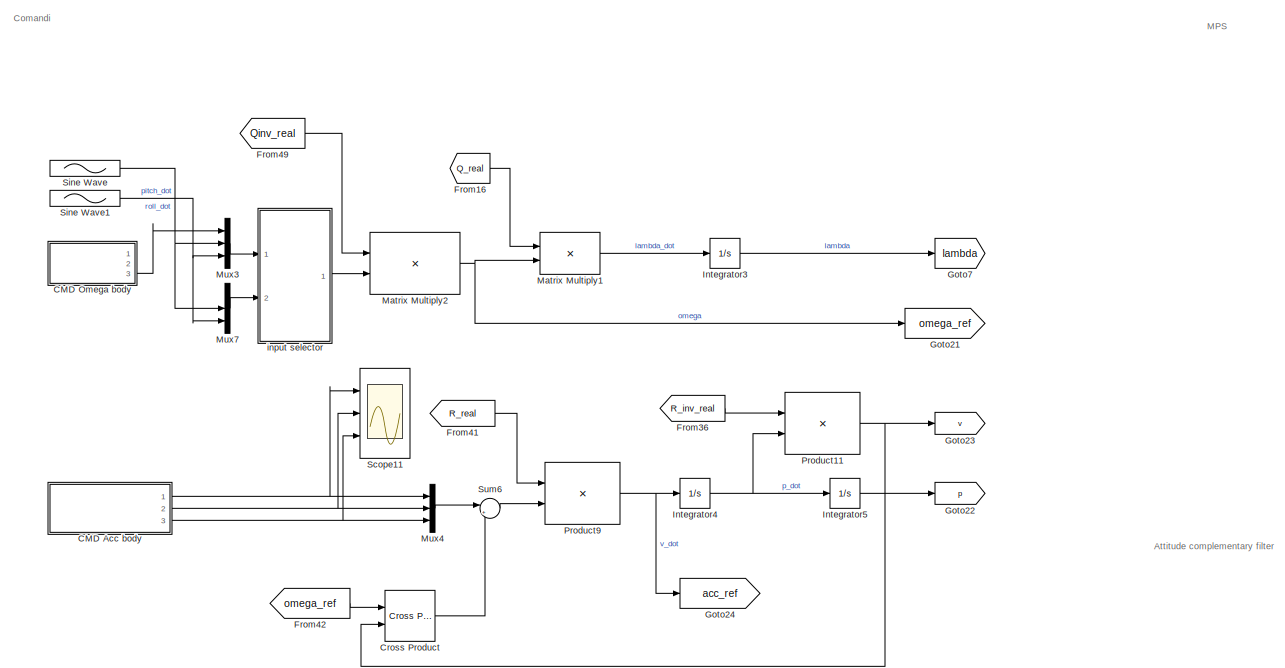
[diagram: root canvas - part 1/7, top left region]
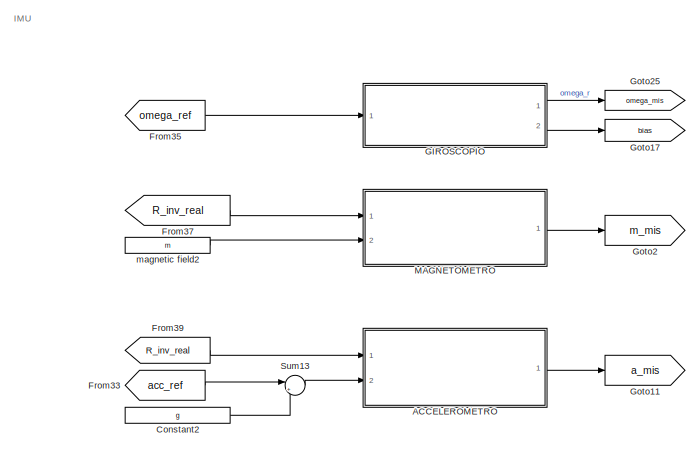
[diagram: root canvas - part 2/7, top right region]
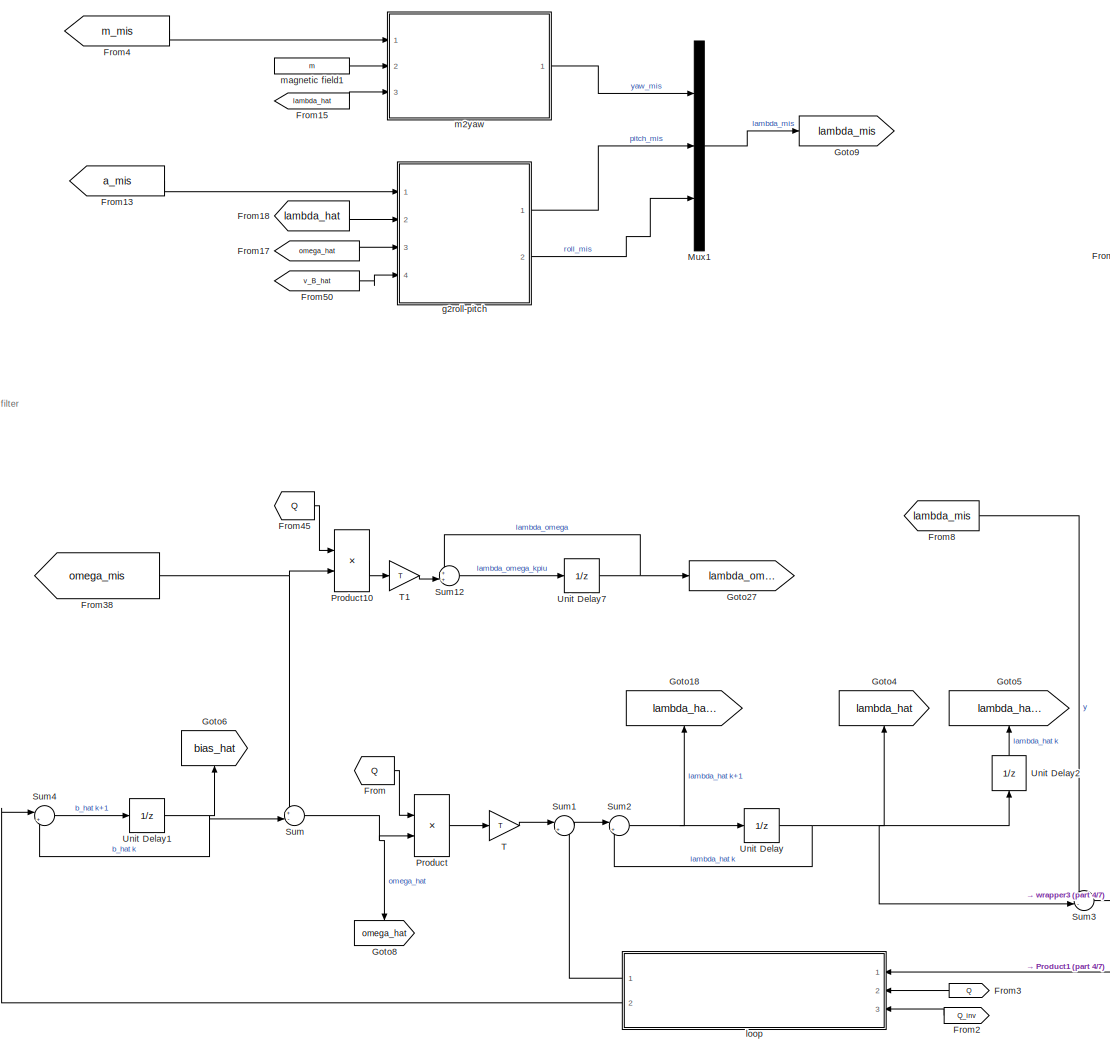
[diagram: root canvas - part 3/7, top center region]
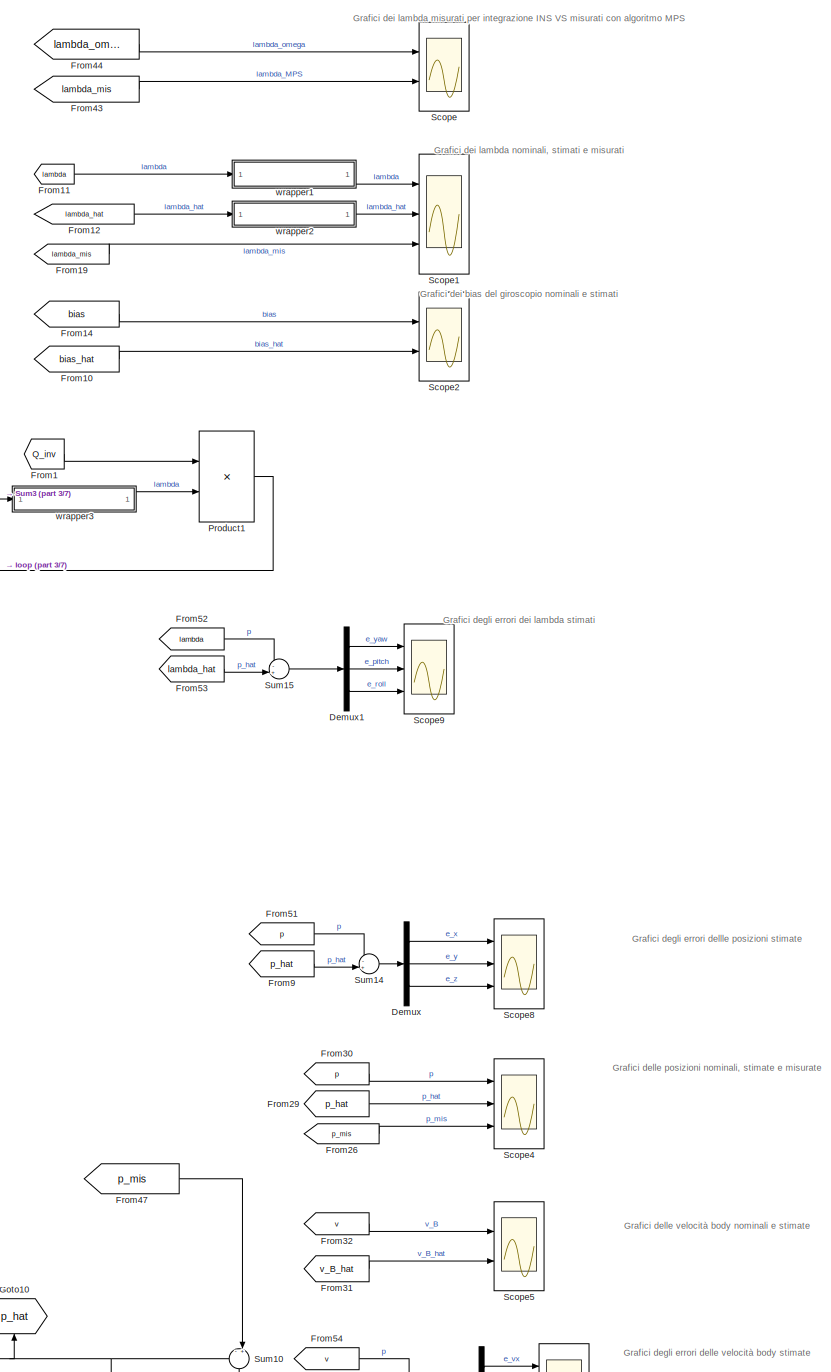
[diagram: root canvas - part 4/7, middle right region]
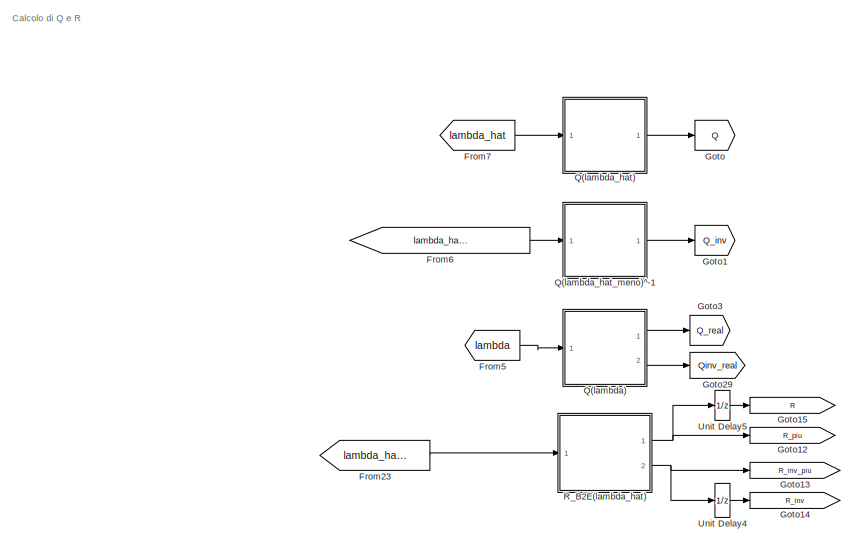
[diagram: root canvas - part 5/7, middle left region]
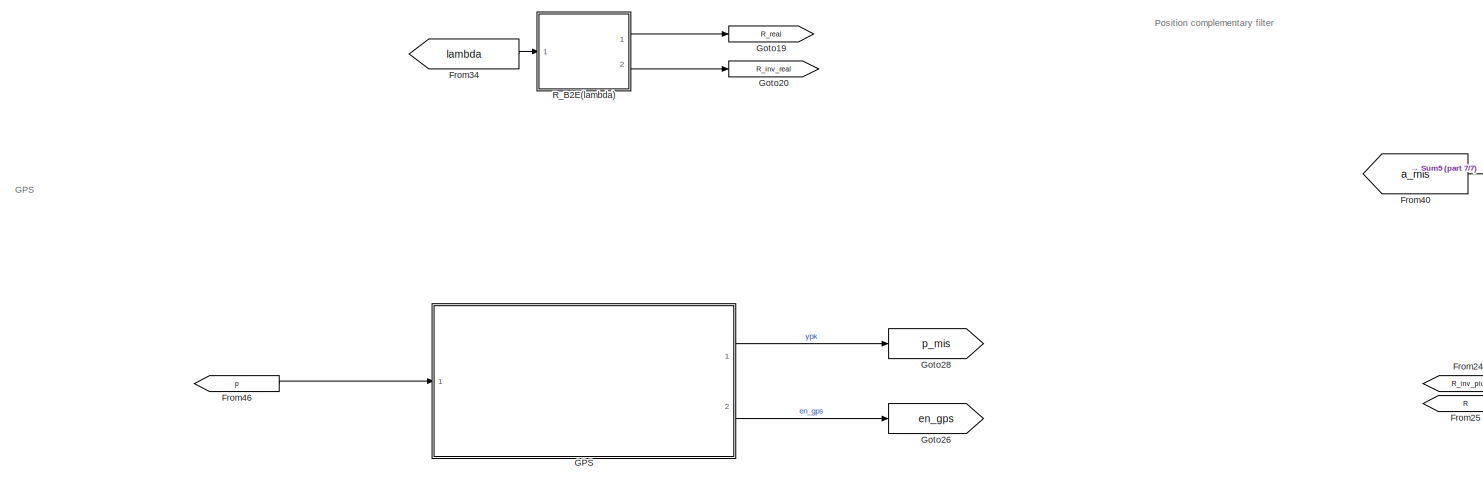
[diagram: root canvas - part 6/7, bottom left region]
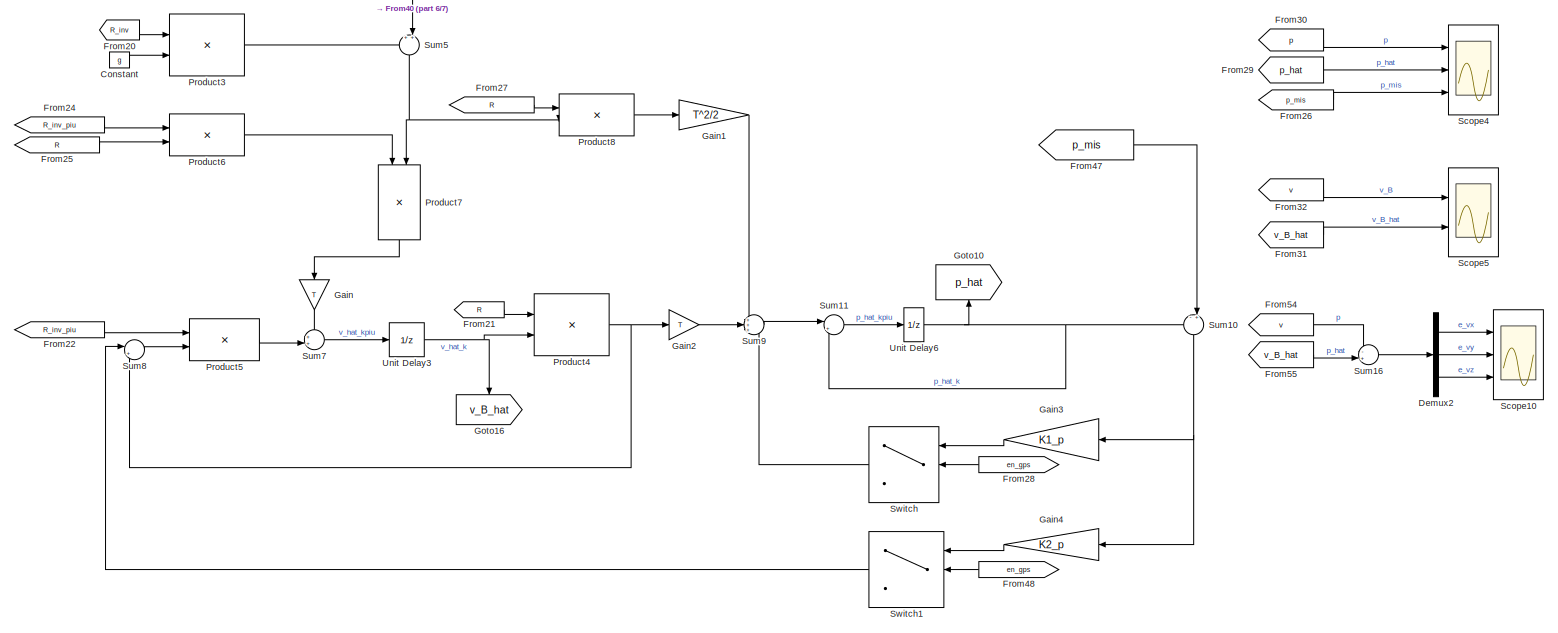
[diagram: root canvas - part 7/7, bottom right region]
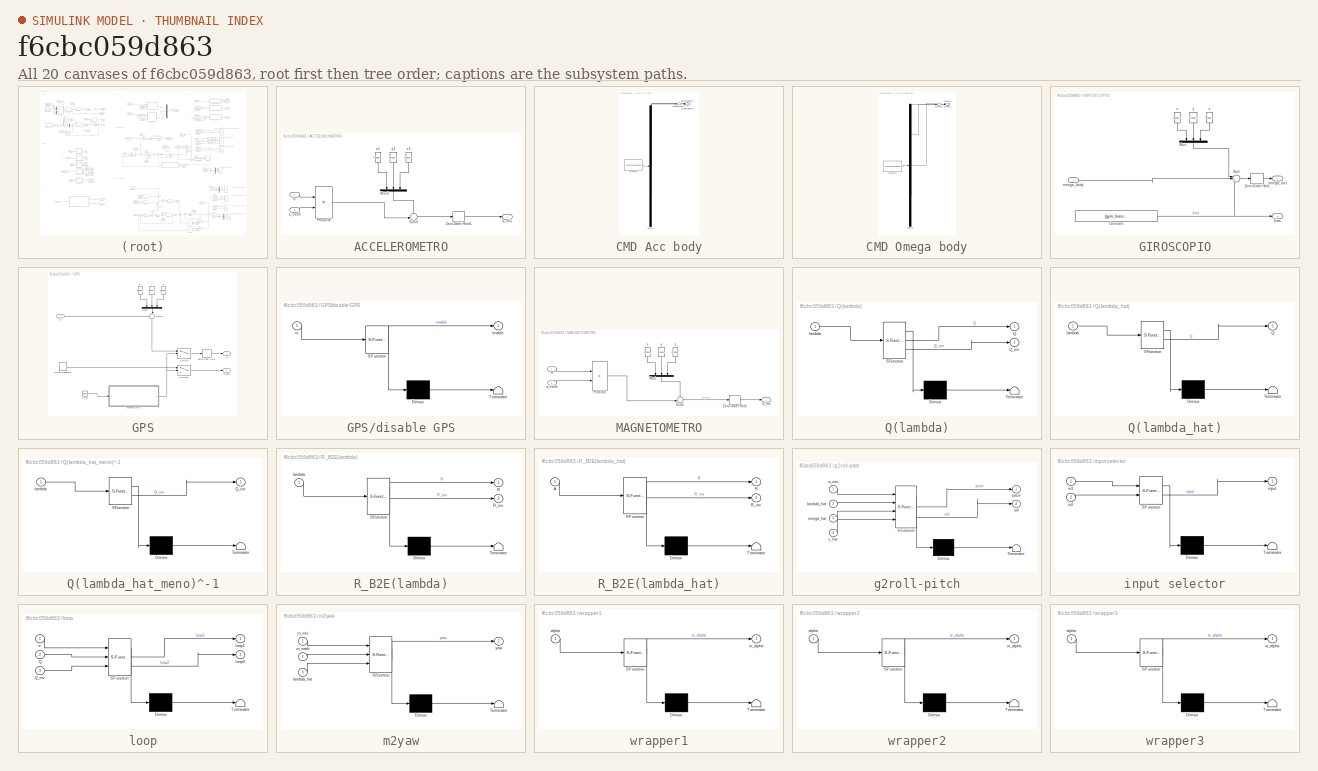
[diagram: thumbnail index - all 20 canvases of the model, root first then tree order]
MODEL slx_f6cbc059d863
KIND model
CONFIG AbsTol = auto
CONFIG EnableMultiTasking = off
CONFIG FixedStep = auto
CONFIG MaxStep = auto
CONFIG MinStep = auto
CONFIG RelTol = 1e-3
CONFIG SampleTimeConstraint = Unconstrained
CONFIG SolverName = VariableStepAuto
CONFIG StartTime = 0.0
CONFIG StopTime = 380
BLOCK [SubSystem] ACCELEROMETRO
  Ports = [2, 1]
  RequestExecContextInheritance = off
BLOCK [Mux] ACCELEROMETRO/Mux2
  DisplayOption = bar
  Inputs = 3
  NameLocation = left
  Ports = [3, 1]
BLOCK [Product] ACCELEROMETRO/Product4
  Multiplication = Matrix(*)
  Ports = [2, 1]
BLOCK [Inport] ACCELEROMETRO/R
BLOCK [Sum] ACCELEROMETRO/Sum6
  Inputs = ++|
  Ports = [2, 1]
BLOCK [ZeroOrderHold] ACCELEROMETRO/Zero-Order Hold1
  SampleTime = T
BLOCK [Inport] ACCELEROMETRO/a_earth
  Port = 2
BLOCK [Outport] ACCELEROMETRO/a_mis
BLOCK [RandomNumber] ACCELEROMETRO/x1
  NameLocation = left
  SampleTime = T
  Variance = acc_sigmax
BLOCK [RandomNumber] ACCELEROMETRO/y1
  NameLocation = left
  SampleTime = T
  Variance = acc_sigmay
  VectorParams1D = off
BLOCK [RandomNumber] ACCELEROMETRO/z1
  NameLocation = left
  SampleTime = T
  Variance = acc_sigmaz
BLOCK [SubSystem] CMD Acc body
  ClipboardFcn = sigbuilder_block('clipboard');
  CloseFcn = sigbuilder_block('close');
  ContinueFcn = sigbuilder_block('continue');
  CopyFcn = sigbuilder_block('copy');
  DeleteFcn = sigbuilder_block('delete');
  LoadFcn = sigbuilder_block('load',[182.4 90 550.8 320.4 ]);
  MaskHideContents = on
  ModelCloseFcn = sigbuilder_block('modelClose');
  NameChangeFcn = sigbuilder_block('namechange');
  OpenFcn = sigbuilder_block('open',[182.4 90 550.8 320.4 ]);
  PauseFcn = sigbuilder_block('pause');
  Ports = [0, 3]
  PreSaveFcn = sigbuilder_block('preSave');
  RequestExecContextInheritance = off
  StartFcn = sigbuilder_block('start');
  StopFcn = sigbuilder_block('stop');
  Tag = STV Subsys
BLOCK [Demux] CMD Acc body/Demux
  DisplayOption = none
  Outputs = 3
  Ports = [1, 3]
  Tag = STV Demux
BLOCK [FromWorkspace] CMD Acc body/FromWs
  Tag = STV FromWs
  VariableName = tuvar
BLOCK [Outport] CMD Acc body/accelerazione x
  Tag = STV Outport
BLOCK [Outport] CMD Acc body/accelerazione y
  Port = 2
  Tag = STV Outport
BLOCK [Outport] CMD Acc body/accelerazione z
  Port = 3
  Tag = STV Outport
BLOCK [SubSystem] CMD Omega body
  ClipboardFcn = sigbuilder_block('clipboard');
  CloseFcn = sigbuilder_block('close');
  ContinueFcn = sigbuilder_block('continue');
  CopyFcn = sigbuilder_block('copy');
  DeleteFcn = sigbuilder_block('delete');
  LoadFcn = sigbuilder_block('load');
  MaskHideContents = on
  ModelCloseFcn = sigbuilder_block('modelClose');
  NameChangeFcn = sigbuilder_block('namechange');
  OpenFcn = sigbuilder_block('open',[112.8 93.6 550.8 400.2 ]);
  PauseFcn = sigbuilder_block('pause');
  Ports = [0, 3]
  PreSaveFcn = sigbuilder_block('preSave');
  RequestExecContextInheritance = off
  StartFcn = sigbuilder_block('start');
  StopFcn = sigbuilder_block('stop');
  Tag = STV Subsys
BLOCK [Demux] CMD Omega body/Demux
  DisplayOption = none
  Outputs = 3
  Ports = [1, 3]
  Tag = STV Demux
BLOCK [FromWorkspace] CMD Omega body/FromWs
  Tag = STV FromWs
  VariableName = tuvar
BLOCK [Outport] CMD Omega body/omega x
  Tag = STV Outport
BLOCK [Outport] CMD Omega body/omega y
  Port = 2
  Tag = STV Outport
BLOCK [Outport] CMD Omega body/omega z
  Port = 3
  Tag = STV Outport
BLOCK [Constant] Constant
  Value = g
  VectorParams1D = off
BLOCK [Constant] Constant2
  Value = g
  VectorParams1D = off
BLOCK [Reference] Cross Product  REF=matrix_library/Cross Product
  Ports = [2, 1]
  SourceBlock = matrix_library/Cross Product
  SourceProductBaseCode = SL
  SourceType = CrossProduct
BLOCK [Demux] Demux
  Outputs = 3
  Ports = [1, 3]
BLOCK [Demux] Demux1
  Outputs = 3
  Ports = [1, 3]
BLOCK [Demux] Demux2
  Outputs = 3
  Ports = [1, 3]
BLOCK [From] From
  GotoTag = Q
BLOCK [From] From1
  GotoTag = Q_inv
BLOCK [From] From10
  GotoTag = bias_hat
BLOCK [From] From11
  GotoTag = lambda
BLOCK [From] From12
  GotoTag = lambda_hat
BLOCK [From] From13
  GotoTag = a_mis
BLOCK [From] From14
  GotoTag = bias
BLOCK [From] From15
  GotoTag = lambda_hat
BLOCK [From] From16
  GotoTag = Q_real
BLOCK [From] From17
  GotoTag = omega_hat
BLOCK [From] From18
  GotoTag = lambda_hat
BLOCK [From] From19
  GotoTag = lambda_mis
BLOCK [From] From2
  GotoTag = Q_inv
BLOCK [From] From20
  GotoTag = R_inv
BLOCK [From] From21
  GotoTag = R
BLOCK [From] From22
  GotoTag = R_inv_piu
BLOCK [From] From23
  GotoTag = lambda_hat_kpiu
BLOCK [From] From24
  GotoTag = R_inv_piu
BLOCK [From] From25
  GotoTag = R
BLOCK [From] From26
  GotoTag = p_mis
BLOCK [From] From27
  GotoTag = R
BLOCK [From] From28
  GotoTag = en_gps
BLOCK [From] From29
  GotoTag = p_hat
BLOCK [From] From3
  GotoTag = Q
BLOCK [From] From30
  GotoTag = p
BLOCK [From] From31
  GotoTag = v_B_hat
BLOCK [From] From32
  GotoTag = v
BLOCK [From] From33
  GotoTag = acc_ref
BLOCK [From] From34
  GotoTag = lambda
BLOCK [From] From35
  GotoTag = omega_ref
BLOCK [From] From36
  GotoTag = R_inv_real
BLOCK [From] From37
  GotoTag = R_inv_real
BLOCK [From] From38
  GotoTag = omega_mis
BLOCK [From] From39
  GotoTag = R_inv_real
BLOCK [From] From4
  GotoTag = m_mis
BLOCK [From] From40
  GotoTag = a_mis
BLOCK [From] From41
  GotoTag = R_real
BLOCK [From] From42
  GotoTag = omega_ref
BLOCK [From] From43
  GotoTag = lambda_mis
BLOCK [From] From44
  GotoTag = lambda_omega
BLOCK [From] From45
  GotoTag = Q
BLOCK [From] From46
  GotoTag = p
BLOCK [From] From47
  GotoTag = p_mis
BLOCK [From] From48
  GotoTag = en_gps
BLOCK [From] From49
  GotoTag = Qinv_real
BLOCK [From] From5
  GotoTag = lambda
BLOCK [From] From50
  GotoTag = v_B_hat
BLOCK [From] From51
  GotoTag = p
BLOCK [From] From52
  GotoTag = lambda
BLOCK [From] From53
  GotoTag = lambda_hat
BLOCK [From] From54
  GotoTag = v
BLOCK [From] From55
  GotoTag = v_B_hat
BLOCK [From] From6
  GotoTag = lambda_hat_kmeno
BLOCK [From] From7
  GotoTag = lambda_hat
BLOCK [From] From8
  GotoTag = lambda_mis
BLOCK [From] From9
  GotoTag = p_hat
BLOCK [SubSystem] GIROSCOPIO
  Ports = [1, 2]
  RequestExecContextInheritance = off
BLOCK [Constant] GIROSCOPIO/Constant
  Value = [gyro_biasx; gyro_biasy;gyro_biasz]
BLOCK [Mux] GIROSCOPIO/Mux
  DisplayOption = bar
  Inputs = 3
  NameLocation = left
  Ports = [3, 1]
BLOCK [Sum] GIROSCOPIO/Sum
  Inputs = |+++
  Ports = [3, 1]
BLOCK [ZeroOrderHold] GIROSCOPIO/Zero-Order Hold
  SampleTime = T
BLOCK [Outport] GIROSCOPIO/bias
  Port = 2
BLOCK [Inport] GIROSCOPIO/omega_body
BLOCK [Outport] GIROSCOPIO/omega_mis
BLOCK [RandomNumber] GIROSCOPIO/x
  NameLocation = left
  SampleTime = T
  Variance = gyro_sigmax
BLOCK [RandomNumber] GIROSCOPIO/y
  NameLocation = left
  SampleTime = T
  Variance = gyro_sigmay
  VectorParams1D = off
BLOCK [RandomNumber] GIROSCOPIO/z
  NameLocation = left
  SampleTime = T
  Variance = gyro_sigmaz
BLOCK [SubSystem] GPS
  Ports = [1, 2]
  RequestExecContextInheritance = off
BLOCK [Clock] GPS/Clock
BLOCK [Mux] GPS/Mux2
  DisplayOption = bar
  Inputs = 3
  NameLocation = left
  Ports = [3, 1]
BLOCK [DiscretePulseGenerator] GPS/Pulse Generator
  Period = T_gps
  Ports = [0, 1]
  PulseType = Time based
  PulseWidth = 5
BLOCK [Sum] GPS/Sum11
  Inputs = ++|
  NameLocation = left
  Ports = [2, 1]
BLOCK [Switch] GPS/Switch
  Criteria = u2 > Threshold
  InputSameDT = off
  SaturateOnIntegerOverflow = off
BLOCK [Switch] GPS/Switch1
  Criteria = u2 > Threshold
  InputSameDT = off
  SaturateOnIntegerOverflow = off
BLOCK [ZeroOrderHold] GPS/Zero-Order Hold
  SampleTime = T_gps
BLOCK [SubSystem] GPS/disable GPS
  ErrorFcn = Stateflow.Translate.translate
  PermitHierarchicalResolution = ExplicitOnly
  Ports = [1, 1]
  RequestExecContextInheritance = off
  SFBlockType = MATLAB Function
  TreatAsAtomicUnit = on
BLOCK [Demux] GPS/disable GPS/ Demux 
  Outputs = 1
  Ports = [1, 1]
BLOCK [S-Function] GPS/disable GPS/ SFunction 
  EnableBusSupport = on
  FunctionName = sf_sfun
  Parameters = EN_OUTAGE,interval1,interval2
  PortCounts = [1 2]
  Ports = [1, 2]
  SFcnIsStateOwnerBlock = off
  SFunctionDeploymentMode = off
  Tag = Stateflow S-Function 8
BLOCK [Terminator] GPS/disable GPS/ Terminator 
BLOCK [Outport] GPS/disable GPS/enable
BLOCK [Inport] GPS/disable GPS/in
BLOCK [Outport] GPS/en_gps
  Port = 2
BLOCK [Inport] GPS/p
BLOCK [RandomNumber] GPS/x
  NameLocation = left
  SampleTime = T_gps
  Variance = gps_sigmax
BLOCK [RandomNumber] GPS/y
  NameLocation = left
  SampleTime = T_gps
  Variance = gps_sigmay
  VectorParams1D = off
BLOCK [Outport] GPS/y_p
BLOCK [RandomNumber] GPS/z
  NameLocation = left
  SampleTime = T_gps
  Variance = gps_sigmaz
BLOCK [Gain] Gain
  Gain = T
  NameLocation = left
BLOCK [Gain] Gain1
  Gain = T^2/2
BLOCK [Gain] Gain2
  Gain = T
  NameLocation = top
BLOCK [Gain] Gain3
  Gain = K1_p
  Multiplication = Matrix(K*u)
  NameLocation = top
BLOCK [Gain] Gain4
  Gain = K2_p
  Multiplication = Matrix(K*u)
  NameLocation = top
BLOCK [Goto] Goto
  GotoTag = Q
BLOCK [Goto] Goto1
  GotoTag = Q_inv
BLOCK [Goto] Goto10
  GotoTag = p_hat
  NameLocation = right
BLOCK [Goto] Goto11
  GotoTag = a_mis
BLOCK [Goto] Goto12
  GotoTag = R_piu
BLOCK [Goto] Goto13
  GotoTag = R_inv_piu
BLOCK [Goto] Goto14
  GotoTag = R_inv
BLOCK [Goto] Goto15
  GotoTag = R
BLOCK [Goto] Goto16
  GotoTag = v_B_hat
  NameLocation = left
BLOCK [Goto] Goto17
  GotoTag = bias
BLOCK [Goto] Goto18
  GotoTag = lambda_hat_kpiu
  NameLocation = right
BLOCK [Goto] Goto19
  GotoTag = R_real
BLOCK [Goto] Goto2
  GotoTag = m_mis
BLOCK [Goto] Goto20
  GotoTag = R_inv_real
BLOCK [Goto] Goto21
  GotoTag = omega_ref
BLOCK [Goto] Goto22
  GotoTag = p
BLOCK [Goto] Goto23
  GotoTag = v
BLOCK [Goto] Goto24
  GotoTag = acc_ref
BLOCK [Goto] Goto25
  GotoTag = omega_mis
BLOCK [Goto] Goto26
  GotoTag = en_gps
BLOCK [Goto] Goto27
  GotoTag = lambda_omega
BLOCK [Goto] Goto28
  GotoTag = p_mis
BLOCK [Goto] Goto29
  GotoTag = Qinv_real
BLOCK [Goto] Goto3
  GotoTag = Q_real
BLOCK [Goto] Goto4
  GotoTag = lambda_hat
  NameLocation = right
BLOCK [Goto] Goto5
  GotoTag = lambda_hat_kmeno
  NameLocation = right
BLOCK [Goto] Goto6
  GotoTag = bias_hat
  NameLocation = right
BLOCK [Goto] Goto7
  GotoTag = lambda
BLOCK [Goto] Goto8
  GotoTag = omega_hat
  NameLocation = left
BLOCK [Goto] Goto9
  GotoTag = lambda_mis
BLOCK [Integrator] Integrator3
  InitialCondition = lambda0
  Ports = [1, 1]
BLOCK [Integrator] Integrator4
  InitialCondition = [0;0;0]
  Ports = [1, 1]
BLOCK [Integrator] Integrator5
  Ports = [1, 1]
BLOCK [SubSystem] MAGNETOMETRO
  Ports = [2, 1]
  RequestExecContextInheritance = off
BLOCK [Mux] MAGNETOMETRO/Mux1
  DisplayOption = bar
  Inputs = 3
  NameLocation = left
  Ports = [3, 1]
BLOCK [Product] MAGNETOMETRO/Product3
  Multiplication = Matrix(*)
  Ports = [2, 1]
BLOCK [Inport] MAGNETOMETRO/R
BLOCK [Sum] MAGNETOMETRO/Sum5
  Inputs = ++|
  Ports = [2, 1]
BLOCK [ZeroOrderHold] MAGNETOMETRO/Zero-Order Hold
  SampleTime = T
BLOCK [Inport] MAGNETOMETRO/m_earth
  Port = 2
BLOCK [Outport] MAGNETOMETRO/m_mis
BLOCK [RandomNumber] MAGNETOMETRO/x
  NameLocation = left
  SampleTime = T
  Variance = mag_sigmax
BLOCK [RandomNumber] MAGNETOMETRO/y
  NameLocation = left
  SampleTime = T
  Variance = mag_sigmay
  VectorParams1D = off
BLOCK [RandomNumber] MAGNETOMETRO/z
  NameLocation = left
  SampleTime = T
  Variance = mag_sigmaz
BLOCK [Product] Matrix Multiply1
  Multiplication = Matrix(*)
  Ports = [2, 1]
BLOCK [Product] Matrix Multiply2
  Multiplication = Matrix(*)
  Ports = [2, 1]
BLOCK [Mux] Mux1
  DisplayOption = bar
  Inputs = 3
  Ports = [3, 1]
BLOCK [Mux] Mux3
  DisplayOption = bar
  Inputs = 3
  Ports = [3, 1]
BLOCK [Mux] Mux4
  DisplayOption = bar
  Inputs = 3
  Ports = [3, 1]
BLOCK [Mux] Mux7
  DisplayOption = bar
  Inputs = 3
  Ports = [3, 1]
BLOCK [Product] Product
  Multiplication = Matrix(*)
  Ports = [2, 1]
BLOCK [Product] Product1
  Multiplication = Matrix(*)
  Ports = [2, 1]
BLOCK [Product] Product10
  Multiplication = Matrix(*)
  Ports = [2, 1]
BLOCK [Product] Product11
  Multiplication = Matrix(*)
  Ports = [2, 1]
BLOCK [Product] Product3
  Multiplication = Matrix(*)
  Ports = [2, 1]
BLOCK [Product] Product4
  Multiplication = Matrix(*)
  Ports = [2, 1]
BLOCK [Product] Product5
  Multiplication = Matrix(*)
  Ports = [2, 1]
BLOCK [Product] Product6
  Multiplication = Matrix(*)
  Ports = [2, 1]
BLOCK [Product] Product7
  Multiplication = Matrix(*)
  NameLocation = left
  Ports = [2, 1]
BLOCK [Product] Product8
  Multiplication = Matrix(*)
  Ports = [2, 1]
BLOCK [Product] Product9
  Multiplication = Matrix(*)
  Ports = [2, 1]
BLOCK [SubSystem] Q(lambda)
  ErrorFcn = Stateflow.Translate.translate
  NameLocation = top
  PermitHierarchicalResolution = ExplicitOnly
  Ports = [1, 2]
  RequestExecContextInheritance = off
  SFBlockType = MATLAB Function
  TreatAsAtomicUnit = on
BLOCK [Demux] Q(lambda)/ Demux 
  Outputs = 1
  Ports = [1, 1]
BLOCK [S-Function] Q(lambda)/ SFunction 
  EnableBusSupport = on
  FunctionName = sf_sfun
  PortCounts = [1 3]
  Ports = [1, 3]
  SFcnIsStateOwnerBlock = off
  SFunctionDeploymentMode = off
  Tag = Stateflow S-Function 4
BLOCK [Terminator] Q(lambda)/ Terminator 
BLOCK [Outport] Q(lambda)/Q
BLOCK [Outport] Q(lambda)/Q_inv
  Port = 2
BLOCK [Inport] Q(lambda)/lambda
BLOCK [SubSystem] Q(lambda_hat)
  ErrorFcn = Stateflow.Translate.translate
  NameLocation = top
  PermitHierarchicalResolution = ExplicitOnly
  Ports = [1, 1]
  RequestExecContextInheritance = off
  SFBlockType = MATLAB Function
  TreatAsAtomicUnit = on
BLOCK [Demux] Q(lambda_hat)/ Demux 
  Outputs = 1
  Ports = [1, 1]
BLOCK [S-Function] Q(lambda_hat)/ SFunction 
  EnableBusSupport = on
  FunctionName = sf_sfun
  PortCounts = [1 2]
  Ports = [1, 2]
  SFcnIsStateOwnerBlock = off
  SFunctionDeploymentMode = off
  Tag = Stateflow S-Function 2
BLOCK [Terminator] Q(lambda_hat)/ Terminator 
BLOCK [Outport] Q(lambda_hat)/Q
BLOCK [Inport] Q(lambda_hat)/lambda
BLOCK [SubSystem] Q(lambda_hat_meno)^-1
  ErrorFcn = Stateflow.Translate.translate
  NameLocation = top
  PermitHierarchicalResolution = ExplicitOnly
  Ports = [1, 1]
  RequestExecContextInheritance = off
  SFBlockType = MATLAB Function
  TreatAsAtomicUnit = on
BLOCK [Demux] Q(lambda_hat_meno)^-1/ Demux 
  Outputs = 1
  Ports = [1, 1]
BLOCK [S-Function] Q(lambda_hat_meno)^-1/ SFunction 
  EnableBusSupport = on
  FunctionName = sf_sfun
  PortCounts = [1 2]
  Ports = [1, 2]
  SFcnIsStateOwnerBlock = off
  SFunctionDeploymentMode = off
  Tag = Stateflow S-Function 1
BLOCK [Terminator] Q(lambda_hat_meno)^-1/ Terminator 
BLOCK [Outport] Q(lambda_hat_meno)^-1/Q_inv
BLOCK [Inport] Q(lambda_hat_meno)^-1/lambda
BLOCK [SubSystem] R_B2E(lambda)
  ErrorFcn = Stateflow.Translate.translate
  PermitHierarchicalResolution = ExplicitOnly
  Ports = [1, 2]
  RequestExecContextInheritance = off
  SFBlockType = MATLAB Function
  TreatAsAtomicUnit = on
BLOCK [Demux] R_B2E(lambda)/ Demux 
  Outputs = 1
  Ports = [1, 1]
BLOCK [S-Function] R_B2E(lambda)/ SFunction 
  EnableBusSupport = on
  FunctionName = sf_sfun
  PortCounts = [1 3]
  Ports = [1, 3]
  SFcnIsStateOwnerBlock = off
  SFunctionDeploymentMode = off
  Tag = Stateflow S-Function 9
BLOCK [Terminator] R_B2E(lambda)/ Terminator 
BLOCK [Outport] R_B2E(lambda)/R
BLOCK [Outport] R_B2E(lambda)/R_inv
  Port = 2
BLOCK [Inport] R_B2E(lambda)/lambda
BLOCK [SubSystem] R_B2E(lambda_hat)
  ErrorFcn = Stateflow.Translate.translate
  PermitHierarchicalResolution = ExplicitOnly
  Ports = [1, 2]
  RequestExecContextInheritance = off
  SFBlockType = MATLAB Function
  TreatAsAtomicUnit = on
BLOCK [Demux] R_B2E(lambda_hat)/ Demux 
  Outputs = 1
  Ports = [1, 1]
BLOCK [S-Function] R_B2E(lambda_hat)/ SFunction 
  EnableBusSupport = on
  FunctionName = sf_sfun
  PortCounts = [1 3]
  Ports = [1, 3]
  SFcnIsStateOwnerBlock = off
  SFunctionDeploymentMode = off
  Tag = Stateflow S-Function 7
BLOCK [Terminator] R_B2E(lambda_hat)/ Terminator 
BLOCK [Inport] R_B2E(lambda_hat)/A
BLOCK [Outport] R_B2E(lambda_hat)/R
BLOCK [Outport] R_B2E(lambda_hat)/R_inv
  Port = 2
BLOCK [Scope] Scope
  Floating = off
  NumInputPorts = 2
  Ports = [2]
  ScopeSpecificationString = Simulink.scopes.TimeScopeBlockCfg('CurrentConfiguration', extmgr.ConfigurationSet(extmgr.Configuration('Core','General UI',true),extmgr.Configuration('Core','Source UI',true),extmgr.Configuration('Sources','WiredSimulink',true),extmgr.Configuration('Visuals','Time Domain',true,'SerializedDisplays',{struct('MinYLimReal','-0.33773','MaxYLimReal','0.68213','YLabelReal','','MinYLimMag','0.00000','MaxY...<+1654ch>
BLOCK [Scope] Scope1
  Floating = off
  NumInputPorts = 3
  Ports = [3]
  ScopeSpecificationString = Simulink.scopes.TimeScopeBlockCfg('CurrentConfiguration', extmgr.ConfigurationSet(extmgr.Configuration('Core','General UI',true),extmgr.Configuration('Core','Source UI',true),extmgr.Configuration('Sources','WiredSimulink',true,'DataLoggingVariableName','ScopeData1'),extmgr.Configuration('Visuals','Time Domain',true,'SerializedDisplays',{struct('MinYLimReal','-3.92699','MaxYLimReal','3.92698','YLab...<+1935ch>
BLOCK [Scope] Scope10
  Floating = off
  NumInputPorts = 3
  Ports = [3]
  ScopeSpecificationString = Simulink.scopes.TimeScopeBlockCfg('CurrentConfiguration', extmgr.ConfigurationSet(extmgr.Configuration('Core','General UI',true),extmgr.Configuration('Core','Source UI',true),extmgr.Configuration('Sources','WiredSimulink',true,'DataLoggingVariableName','ScopeData3'),extmgr.Configuration('Visuals','Time Domain',true,'SerializedDisplays',{struct('MinYLimReal','-2.77355','MaxYLimReal','2.16835','YLab...<+3019ch>
BLOCK [Scope] Scope11
  Floating = off
  NumInputPorts = 3
  Ports = [3]
  ScopeSpecificationString = Simulink.scopes.TimeScopeBlockCfg('CurrentConfiguration', extmgr.ConfigurationSet(extmgr.Configuration('Core','General UI',true),extmgr.Configuration('Core','Source UI',true),extmgr.Configuration('Sources','WiredSimulink',true,'DataLoggingVariableName','ScopeData1'),extmgr.Configuration('Visuals','Time Domain',true,'SerializedDisplays',{struct('MinYLimReal','-0.13125','MaxYLimReal','1.18125','YLab...<+2979ch>
BLOCK [Scope] Scope2
  Floating = off
  NumInputPorts = 2
  Ports = [2]
  ScopeSpecificationString = Simulink.scopes.TimeScopeBlockCfg('CurrentConfiguration', extmgr.ConfigurationSet(extmgr.Configuration('Core','General UI',true),extmgr.Configuration('Core','Source UI',true),extmgr.Configuration('Sources','WiredSimulink',true,'DataLoggingVariableName','ScopeData1'),extmgr.Configuration('Visuals','Time Domain',true,'SerializedDisplays',{struct('MinYLimReal','0.0006','MaxYLimReal','0.00285','YLabel...<+1714ch>
BLOCK [Scope] Scope4
  Floating = off
  NumInputPorts = 3
  Ports = [3]
  ScopeSpecificationString = Simulink.scopes.TimeScopeBlockCfg('CurrentConfiguration', extmgr.ConfigurationSet(extmgr.Configuration('Core','General UI',true),extmgr.Configuration('Core','Source UI',true),extmgr.Configuration('Sources','WiredSimulink',true,'DataLoggingVariableName','ScopeData1'),extmgr.Configuration('Visuals','Time Domain',true,'SerializedDisplays',{struct('MinYLimReal','-282.34303','MaxYLimReal','965.45001','...<+1835ch>
BLOCK [Scope] Scope5
  Floating = off
  NumInputPorts = 2
  Ports = [2]
  ScopeSpecificationString = Simulink.scopes.TimeScopeBlockCfg('CurrentConfiguration', extmgr.ConfigurationSet(extmgr.Configuration('Core','General UI',true),extmgr.Configuration('Core','Source UI',true),extmgr.Configuration('Sources','WiredSimulink',true,'DataLoggingVariableName','ScopeData2'),extmgr.Configuration('Visuals','Time Domain',true,'SerializedDisplays',{struct('MinYLimReal','-1.82142','MaxYLimReal','4.44335','YLab...<+1709ch>
BLOCK [Scope] Scope8
  Floating = off
  NumInputPorts = 3
  Ports = [3]
  ScopeSpecificationString = Simulink.scopes.TimeScopeBlockCfg('CurrentConfiguration', extmgr.ConfigurationSet(extmgr.Configuration('Core','General UI',true),extmgr.Configuration('Core','Source UI',true),extmgr.Configuration('Sources','WiredSimulink',true,'DataLoggingVariableName','ScopeData1'),extmgr.Configuration('Visuals','Time Domain',true,'SerializedDisplays',{struct('MinYLimReal','-15.50912','MaxYLimReal','10.04108','YL...<+3295ch>
BLOCK [Scope] Scope9
  Floating = off
  NumInputPorts = 3
  Ports = [3]
  ScopeSpecificationString = Simulink.scopes.TimeScopeBlockCfg('CurrentConfiguration', extmgr.ConfigurationSet(extmgr.Configuration('Core','General UI',true),extmgr.Configuration('Core','Source UI',true),extmgr.Configuration('Sources','WiredSimulink',true,'DataLoggingVariableName','ScopeData2'),extmgr.Configuration('Visuals','Time Domain',true,'SerializedDisplays',{struct('MinYLimReal','-0.01673','MaxYLimReal','0.01979','YLab...<+3027ch>
BLOCK [Sin] Sine Wave
  Amplitude = deg2rad(10)*(2*pi*0.01)
  Frequency = 2*pi*0.01
  Ports = [0, 1]
  SampleTime = 0
BLOCK [Sin] Sine Wave1
  Amplitude = deg2rad(9)*(2*pi*0.01)
  Frequency = 2*pi*0.01
  Phase = 2
  Ports = [0, 1]
  SampleTime = 0
BLOCK [Sum] Sum
  Inputs = +-|
  Ports = [2, 1]
BLOCK [Sum] Sum1
  Inputs = |++
  Ports = [2, 1]
BLOCK [Sum] Sum10
  Inputs = -+|
  NameLocation = right
  Ports = [2, 1]
BLOCK [Sum] Sum11
  Inputs = |++
  Ports = [2, 1]
BLOCK [Sum] Sum12
  Inputs = ++|
  Ports = [2, 1]
BLOCK [Sum] Sum13
  Inputs = |+-
  Ports = [2, 1]
BLOCK [Sum] Sum14
  Inputs = -+|
  NameLocation = top
  Ports = [2, 1]
BLOCK [Sum] Sum15
  Inputs = -+|
  NameLocation = top
  Ports = [2, 1]
BLOCK [Sum] Sum16
  Inputs = -+|
  NameLocation = top
  Ports = [2, 1]
BLOCK [Sum] Sum2
  Inputs = |++
  Ports = [2, 1]
BLOCK [Sum] Sum3
  Inputs = +-|
  Ports = [2, 1]
BLOCK [Sum] Sum4
  Inputs = |++
  Ports = [2, 1]
BLOCK [Sum] Sum5
  Inputs = ++|
  NameLocation = left
  Ports = [2, 1]
BLOCK [Sum] Sum6
  Inputs = |++
  Ports = [2, 1]
BLOCK [Sum] Sum7
  Inputs = ++|
  Ports = [2, 1]
BLOCK [Sum] Sum8
  Inputs = |++
  Ports = [2, 1]
BLOCK [Sum] Sum9
  Inputs = +++
  Ports = [3, 1]
BLOCK [Switch] Switch
  Criteria = u2 > Threshold
  InputSameDT = off
  SaturateOnIntegerOverflow = off
BLOCK [Switch] Switch1
  Criteria = u2 > Threshold
  InputSameDT = off
  SaturateOnIntegerOverflow = off
BLOCK [Gain] T
  Gain = T
BLOCK [Gain] T1
  Gain = T
  Multiplication = Matrix(K*u)
BLOCK [UnitDelay] Unit Delay
  HasFrameUpgradeWarning = on
  InitialCondition = lambda_hat_0
  SampleTime = T
BLOCK [UnitDelay] Unit Delay1
  HasFrameUpgradeWarning = on
  InitialCondition = bias_hat_0
  SampleTime = T
BLOCK [UnitDelay] Unit Delay2
  HasFrameUpgradeWarning = on
  InitialCondition = lambda_hat_0
  NameLocation = right
  SampleTime = T
BLOCK [UnitDelay] Unit Delay3
  HasFrameUpgradeWarning = on
  InitialCondition = v_B_hat_0
  SampleTime = -1
BLOCK [UnitDelay] Unit Delay4
  HasFrameUpgradeWarning = on
  SampleTime = T
BLOCK [UnitDelay] Unit Delay5
  HasFrameUpgradeWarning = on
  SampleTime = T
BLOCK [UnitDelay] Unit Delay6
  HasFrameUpgradeWarning = on
  InitialCondition = p_hat_0
  SampleTime = -1
BLOCK [UnitDelay] Unit Delay7
  HasFrameUpgradeWarning = on
  InitialCondition = lambda_hat_0
  SampleTime = T
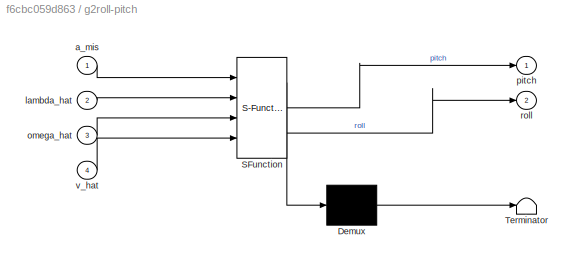
BLOCK [SubSystem] g2roll-pitch
  ErrorFcn = Stateflow.Translate.translate
  NameLocation = top
  PermitHierarchicalResolution = ExplicitOnly
  Ports = [4, 2]
  RequestExecContextInheritance = off
  SFBlockType = MATLAB Function
  TreatAsAtomicUnit = on
BLOCK [Demux] g2roll-pitch/ Demux 
  Outputs = 1
  Ports = [1, 1]
BLOCK [S-Function] g2roll-pitch/ SFunction 
  EnableBusSupport = on
  FunctionName = sf_sfun
  PortCounts = [4 3]
  Ports = [4, 3]
  SFcnIsStateOwnerBlock = off
  SFunctionDeploymentMode = off
  Tag = Stateflow S-Function 5
BLOCK [Terminator] g2roll-pitch/ Terminator 
BLOCK [Inport] g2roll-pitch/a_mis
BLOCK [Inport] g2roll-pitch/lambda_hat
  Port = 2
BLOCK [Inport] g2roll-pitch/omega_hat
  Port = 3
BLOCK [Outport] g2roll-pitch/pitch
BLOCK [Outport] g2roll-pitch/roll
  Port = 2
BLOCK [Inport] g2roll-pitch/v_hat
  Port = 4
BLOCK [SubSystem] input selector
  ErrorFcn = Stateflow.Translate.translate
  PermitHierarchicalResolution = ExplicitOnly
  Ports = [2, 1]
  RequestExecContextInheritance = off
  SFBlockType = MATLAB Function
  TreatAsAtomicUnit = on
BLOCK [Demux] input selector/ Demux 
  Outputs = 1
  Ports = [1, 1]
BLOCK [S-Function] input selector/ SFunction 
  EnableBusSupport = on
  FunctionName = sf_sfun
  Parameters = TRAIETTORIA
  PortCounts = [2 2]
  Ports = [2, 2]
  SFcnIsStateOwnerBlock = off
  SFunctionDeploymentMode = off
  Tag = Stateflow S-Function 14
BLOCK [Terminator] input selector/ Terminator 
BLOCK [Inport] input selector/in1
BLOCK [Inport] input selector/in2
  Port = 2
BLOCK [Outport] input selector/input
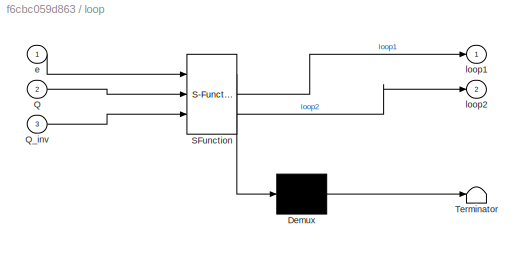
BLOCK [SubSystem] loop
  ErrorFcn = Stateflow.Translate.translate
  NameLocation = top
  PermitHierarchicalResolution = ExplicitOnly
  Ports = [3, 2]
  RequestExecContextInheritance = off
  SFBlockType = MATLAB Function
  TreatAsAtomicUnit = on
BLOCK [Demux] loop/ Demux 
  Outputs = 1
  Ports = [1, 1]
BLOCK [S-Function] loop/ SFunction 
  EnableBusSupport = on
  FunctionName = sf_sfun
  Parameters = K1_lambda,K2_lambda
  PortCounts = [3 3]
  Ports = [3, 3]
  SFcnIsStateOwnerBlock = off
  SFunctionDeploymentMode = off
  Tag = Stateflow S-Function 3
BLOCK [Terminator] loop/ Terminator 
BLOCK [Inport] loop/Q
  Port = 2
BLOCK [Inport] loop/Q_inv
  Port = 3
BLOCK [Inport] loop/e
BLOCK [Outport] loop/loop1
BLOCK [Outport] loop/loop2
  Port = 2
BLOCK [SubSystem] m2yaw
  ErrorFcn = Stateflow.Translate.translate
  NameLocation = top
  PermitHierarchicalResolution = ExplicitOnly
  Ports = [3, 1]
  RequestExecContextInheritance = off
  SFBlockType = MATLAB Function
  TreatAsAtomicUnit = on
BLOCK [Demux] m2yaw/ Demux 
  Outputs = 1
  Ports = [1, 1]
BLOCK [S-Function] m2yaw/ SFunction 
  EnableBusSupport = on
  FunctionName = sf_sfun
  PortCounts = [3 2]
  Ports = [3, 2]
  SFcnIsStateOwnerBlock = off
  SFunctionDeploymentMode = off
  Tag = Stateflow S-Function 6
BLOCK [Terminator] m2yaw/ Terminator 
BLOCK [Inport] m2yaw/lambda_hat
  Port = 3
BLOCK [Inport] m2yaw/m_earth
  Port = 2
BLOCK [Inport] m2yaw/m_mis
BLOCK [Outport] m2yaw/yaw
BLOCK [Constant] magnetic field1
  Value = m
BLOCK [Constant] magnetic field2
  Value = m
BLOCK [SubSystem] wrapper1
  ErrorFcn = Stateflow.Translate.translate
  NameLocation = top
  PermitHierarchicalResolution = ExplicitOnly
  Ports = [1, 1]
  RequestExecContextInheritance = off
  SFBlockType = MATLAB Function
  TreatAsAtomicUnit = on
BLOCK [Demux] wrapper1/ Demux 
  Outputs = 1
  Ports = [1, 1]
BLOCK [S-Function] wrapper1/ SFunction 
  EnableBusSupport = on
  FunctionName = sf_sfun
  PortCounts = [1 2]
  Ports = [1, 2]
  SFcnIsStateOwnerBlock = off
  SFunctionDeploymentMode = off
  Tag = Stateflow S-Function 11
BLOCK [Terminator] wrapper1/ Terminator 
BLOCK [Inport] wrapper1/alpha
BLOCK [Outport] wrapper1/w_alpha
BLOCK [SubSystem] wrapper2
  ErrorFcn = Stateflow.Translate.translate
  NameLocation = top
  PermitHierarchicalResolution = ExplicitOnly
  Ports = [1, 1]
  RequestExecContextInheritance = off
  SFBlockType = MATLAB Function
  TreatAsAtomicUnit = on
BLOCK [Demux] wrapper2/ Demux 
  Outputs = 1
  Ports = [1, 1]
BLOCK [S-Function] wrapper2/ SFunction 
  EnableBusSupport = on
  FunctionName = sf_sfun
  PortCounts = [1 2]
  Ports = [1, 2]
  SFcnIsStateOwnerBlock = off
  SFunctionDeploymentMode = off
  Tag = Stateflow S-Function 13
BLOCK [Terminator] wrapper2/ Terminator 
BLOCK [Inport] wrapper2/alpha
BLOCK [Outport] wrapper2/w_alpha
BLOCK [SubSystem] wrapper3
  ErrorFcn = Stateflow.Translate.translate
  NameLocation = top
  PermitHierarchicalResolution = ExplicitOnly
  Ports = [1, 1]
  RequestExecContextInheritance = off
  SFBlockType = MATLAB Function
  TreatAsAtomicUnit = on
BLOCK [Demux] wrapper3/ Demux 
  Outputs = 1
  Ports = [1, 1]
BLOCK [S-Function] wrapper3/ SFunction 
  EnableBusSupport = on
  FunctionName = sf_sfun
  PortCounts = [1 2]
  Ports = [1, 2]
  SFcnIsStateOwnerBlock = off
  SFunctionDeploymentMode = off
  Tag = Stateflow S-Function 12
BLOCK [Terminator] wrapper3/ Terminator 
BLOCK [Inport] wrapper3/alpha
BLOCK [Outport] wrapper3/w_alpha
ANNOTATION (root): Grafici degli errori dei lambda stimati
ANNOTATION (root): Grafici degli errori delle velocità body stimate
ANNOTATION (root): Grafici degli errori dellle posizioni stimate
ANNOTATION (root): Grafici dei bias del giroscopio nominali e stimati
ANNOTATION (root): Grafici dei lambda misurati per integrazione INS VS misurati con algoritmo MPS
ANNOTATION (root): Grafici dei lambda nominali, stimati e misurati
ANNOTATION (root): Grafici delle posizioni nominali, stimate e misurate
ANNOTATION (root): Grafici delle velocità body nominali e stimate
ANNOTATION (root): Attitude complementary filter
ANNOTATION (root): Calcolo di Q e R
ANNOTATION (root): Comandi
ANNOTATION (root): GPS
ANNOTATION (root): IMU
ANNOTATION (root): MPS
ANNOTATION (root): Position complementary filter
LINE ACCELEROMETRO/Mux2:1 -> ACCELEROMETRO/Sum6:1
LINE ACCELEROMETRO/Product4:1 -> ACCELEROMETRO/Sum6:2
LINE ACCELEROMETRO/R:1 -> ACCELEROMETRO/Product4:1
LINE ACCELEROMETRO/Sum6:1 -> ACCELEROMETRO/Zero-Order Hold1:1
LINE ACCELEROMETRO/Zero-Order Hold1:1 -> ACCELEROMETRO/a_mis:1
LINE ACCELEROMETRO/a_earth:1 -> ACCELEROMETRO/Product4:2
LINE ACCELEROMETRO/x1:1 -> ACCELEROMETRO/Mux2:1
LINE ACCELEROMETRO/y1:1 -> ACCELEROMETRO/Mux2:2
LINE ACCELEROMETRO/z1:1 -> ACCELEROMETRO/Mux2:3
LINE ACCELEROMETRO:1 -> Goto11:1
NET CMD Acc body:1 -> Mux4:1, Scope11:1
NET CMD Acc body:2 -> Mux4:2, Scope11:2
NET CMD Acc body:3 -> Mux4:3, Scope11:3
LINE CMD Omega body:3 -> Mux3:1
LINE Constant2:1 -> Sum13:2
LINE Constant:1 -> Product3:2
LINE Cross Product:1 -> Sum6:2
LINE Demux1:1 -> Scope9:1
LINE Demux1:2 -> Scope9:2
LINE Demux1:3 -> Scope9:3
LINE Demux2:1 -> Scope10:1
LINE Demux2:2 -> Scope10:2
LINE Demux2:3 -> Scope10:3
LINE Demux:1 -> Scope8:1
LINE Demux:2 -> Scope8:2
LINE Demux:3 -> Scope8:3
LINE From10:1 -> Scope2:2
LINE From11:1 -> wrapper1:1
LINE From12:1 -> wrapper2:1
LINE From13:1 -> g2roll-pitch:1
LINE From14:1 -> Scope2:1
LINE From15:1 -> m2yaw:3
LINE From16:1 -> Matrix Multiply1:1
LINE From17:1 -> g2roll-pitch:3
LINE From18:1 -> g2roll-pitch:2
LINE From19:1 -> Scope1:3
LINE From1:1 -> Product1:1
LINE From20:1 -> Product3:1
LINE From21:1 -> Product4:1
LINE From22:1 -> Product5:1
LINE From23:1 -> R_B2E(lambda_hat):1
LINE From24:1 -> Product6:1
LINE From25:1 -> Product6:2
LINE From26:1 -> Scope4:3
LINE From27:1 -> Product8:1
LINE From28:1 -> Switch:2
LINE From29:1 -> Scope4:2
LINE From2:1 -> loop:3
LINE From30:1 -> Scope4:1
LINE From31:1 -> Scope5:2
LINE From32:1 -> Scope5:1
LINE From33:1 -> Sum13:1
LINE From34:1 -> R_B2E(lambda):1
LINE From35:1 -> GIROSCOPIO:1
LINE From36:1 -> Product11:1
LINE From37:1 -> MAGNETOMETRO:1
NET From38:1 -> Product10:2, Sum:1
LINE From39:1 -> ACCELEROMETRO:1
LINE From3:1 -> loop:2
LINE From40:1 -> Sum5:2
LINE From41:1 -> Product9:1
LINE From42:1 -> Cross Product:1
LINE From43:1 -> Scope:2
LINE From44:1 -> Scope:1
LINE From45:1 -> Product10:1
LINE From46:1 -> GPS:1
LINE From47:1 -> Sum10:2
LINE From48:1 -> Switch1:2
LINE From49:1 -> Matrix Multiply2:1
LINE From4:1 -> m2yaw:1
LINE From50:1 -> g2roll-pitch:4
LINE From51:1 -> Sum14:1
LINE From52:1 -> Sum15:1
LINE From53:1 -> Sum15:2
LINE From54:1 -> Sum16:1
LINE From55:1 -> Sum16:2
LINE From5:1 -> Q(lambda):1
LINE From6:1 -> Q(lambda_hat_meno)^-1:1
LINE From7:1 -> Q(lambda_hat):1
LINE From8:1 -> Sum3:1
LINE From9:1 -> Sum14:2
LINE From:1 -> Product:1
NET GIROSCOPIO/Constant:1 -> GIROSCOPIO/Sum:3, GIROSCOPIO/bias:1
LINE GIROSCOPIO/Mux:1 -> GIROSCOPIO/Sum:1
LINE GIROSCOPIO/Sum:1 -> GIROSCOPIO/Zero-Order Hold:1
LINE GIROSCOPIO/Zero-Order Hold:1 -> GIROSCOPIO/omega_mis:1
LINE GIROSCOPIO/omega_body:1 -> GIROSCOPIO/Sum:2
LINE GIROSCOPIO/x:1 -> GIROSCOPIO/Mux:1
LINE GIROSCOPIO/y:1 -> GIROSCOPIO/Mux:2
LINE GIROSCOPIO/z:1 -> GIROSCOPIO/Mux:3
LINE GIROSCOPIO:1 -> Goto25:1
LINE GIROSCOPIO:2 -> Goto17:1
LINE GPS/Clock:1 -> GPS/disable GPS:1
LINE GPS/Mux2:1 -> GPS/Sum11:2
LINE GPS/Pulse Generator:1 -> GPS/Switch1:1
LINE GPS/Sum11:1 -> GPS/Switch:1
LINE GPS/Switch1:1 -> GPS/en_gps:1
LINE GPS/Switch:1 -> GPS/Zero-Order Hold:1
LINE GPS/Zero-Order Hold:1 -> GPS/y_p:1
NET GPS/disable GPS:1 -> GPS/Switch1:2, GPS/Switch:2
LINE GPS/p:1 -> GPS/Sum11:1
LINE GPS/x:1 -> GPS/Mux2:1
LINE GPS/y:1 -> GPS/Mux2:2
LINE GPS/z:1 -> GPS/Mux2:3
LINE GPS:1 -> Goto28:1
LINE GPS:2 -> Goto26:1
LINE Gain1:1 -> Sum9:1
LINE Gain2:1 -> Sum9:2
LINE Gain3:1 -> Switch:1
LINE Gain4:1 -> Switch1:1
LINE Gain:1 -> Sum7:1
LINE Integrator3:1 -> Goto7:1
NET Integrator4:1 -> Integrator5:1, Product11:2
LINE Integrator5:1 -> Goto22:1
LINE MAGNETOMETRO/Mux1:1 -> MAGNETOMETRO/Sum5:1
LINE MAGNETOMETRO/Product3:1 -> MAGNETOMETRO/Sum5:2
LINE MAGNETOMETRO/R:1 -> MAGNETOMETRO/Product3:1
LINE MAGNETOMETRO/Sum5:1 -> MAGNETOMETRO/Zero-Order Hold:1
LINE MAGNETOMETRO/Zero-Order Hold:1 -> MAGNETOMETRO/m_mis:1
LINE MAGNETOMETRO/m_earth:1 -> MAGNETOMETRO/Product3:2
LINE MAGNETOMETRO/x:1 -> MAGNETOMETRO/Mux1:1
LINE MAGNETOMETRO/y:1 -> MAGNETOMETRO/Mux1:2
LINE MAGNETOMETRO/z:1 -> MAGNETOMETRO/Mux1:3
LINE MAGNETOMETRO:1 -> Goto2:1
LINE Matrix Multiply1:1 -> Integrator3:1
NET Matrix Multiply2:1 -> Goto21:1, Matrix Multiply1:2
LINE Mux1:1 -> Goto9:1
LINE Mux3:1 -> input selector:1
LINE Mux4:1 -> Sum6:1
LINE Mux7:1 -> input selector:2
LINE Product10:1 -> T1:1
NET Product11:1 -> Cross Product:2, Goto23:1
LINE Product1:1 -> loop:1
LINE Product3:1 -> Sum5:1
NET Product4:1 -> Gain2:1, Sum8:2
LINE Product5:1 -> Sum7:2
LINE Product6:1 -> Product7:1
LINE Product7:1 -> Gain:1
LINE Product8:1 -> Gain1:1
NET Product9:1 -> Goto24:1, Integrator4:1
LINE Product:1 -> T:1
LINE Q(lambda):1 -> Goto3:1
LINE Q(lambda):2 -> Goto29:1
LINE Q(lambda_hat):1 -> Goto:1
LINE Q(lambda_hat_meno)^-1:1 -> Goto1:1
LINE R_B2E(lambda):1 -> Goto19:1
LINE R_B2E(lambda):2 -> Goto20:1
NET R_B2E(lambda_hat):1 -> Goto12:1, Unit Delay5:1
NET R_B2E(lambda_hat):2 -> Goto13:1, Unit Delay4:1
NET Sine Wave1:1 -> Mux3:3, Mux7:3
NET Sine Wave:1 -> Mux3:2, Mux7:2
NET Sum10:1 -> Gain3:1, Gain4:1
LINE Sum11:1 -> Unit Delay6:1
LINE Sum12:1 -> Unit Delay7:1
LINE Sum13:1 -> ACCELEROMETRO:2
LINE Sum14:1 -> Demux:1
LINE Sum15:1 -> Demux1:1
LINE Sum16:1 -> Demux2:1
LINE Sum1:1 -> Sum2:1
NET Sum2:1 -> Goto18:1, Unit Delay:1
LINE Sum3:1 -> wrapper3:1
LINE Sum4:1 -> Unit Delay1:1
NET Sum5:1 -> Product7:2, Product8:2
LINE Sum6:1 -> Product9:2
LINE Sum7:1 -> Unit Delay3:1
LINE Sum8:1 -> Product5:2
LINE Sum9:1 -> Sum11:1
NET Sum:1 -> Goto8:1, Product:2
LINE Switch1:1 -> Sum8:1
LINE Switch:1 -> Sum9:3
LINE T1:1 -> Sum12:2
LINE T:1 -> Sum1:1
NET Unit Delay1:1 -> Goto6:1, Sum4:2, Sum:2
LINE Unit Delay2:1 -> Goto5:1
NET Unit Delay3:1 -> Goto16:1, Product4:2
LINE Unit Delay4:1 -> Goto14:1
LINE Unit Delay5:1 -> Goto15:1
NET Unit Delay6:1 -> Goto10:1, Sum10:1, Sum11:2
NET Unit Delay7:1 -> Goto27:1, Sum12:1
NET Unit Delay:1 -> Goto4:1, Sum2:2, Sum3:2, Unit Delay2:1
LINE g2roll-pitch:1 -> Mux1:2
LINE g2roll-pitch:2 -> Mux1:3
LINE input selector:1 -> Matrix Multiply2:2
LINE loop:1 -> Sum1:2
LINE loop:2 -> Sum4:1
LINE m2yaw:1 -> Mux1:1
LINE magnetic field1:1 -> m2yaw:2
LINE magnetic field2:1 -> MAGNETOMETRO:2
LINE wrapper1:1 -> Scope1:1
LINE wrapper2:1 -> Scope1:2
LINE wrapper3:1 -> Product1:2
note: NET lines group one-source signal fan-out (src -> all destinations, sorted); 1:1 wires keep LINE
CHART wrapper3 states=1 transitions=1
  STATE_LABEL 'eML_blk_kernel()'
  STATE_LABEL 'SCRIPT:\nfunction w_alpha  = wtp(alpha)\n\nw_alpha =  wrapToPi(alpha);\n'
CHART wrapper2 states=1 transitions=1
  STATE_LABEL 'eML_blk_kernel()'
  STATE_LABEL 'SCRIPT:\nfunction w_alpha  = wtp(alpha)\n\nw_alpha =  wrapToPi(alpha);\n'
CHART input selector states=1 transitions=1
  STATE_LABEL 'eML_blk_kernel()'
  STATE_LABEL 'SCRIPT:\nfunction input = inputSelector(in1, in2, TRAIETTORIA)\n    % inserire condizioni per cui disabilitare il GPS\n    switch TRAIETTORIA\n        case 1 \n            input = in1;\n        case 2\n            input = in2;\n        otherwise\n            input = [0;0;0];\n    end\nend\n'
CHART Q(lambda_hat_meno)^-1 states=1 transitions=1
  STATE_LABEL 'eML_blk_kernel()'
  STATE_LABEL 'SCRIPT:\nfunction Q_inv = inv_kinematic(lambda)\n\nr = lambda(3);\np = lambda(2);\n\n\nQ_inv = inv([   0 sin(r)*sec(p) cos(r)*sec(p);\n        0 cos(r)        -sin(r);\n        1 sin(r)*tan(p)  cos(r)*tan(p);]);\n\n'
CHART Q(lambda_hat) states=1 transitions=1
  STATE_LABEL 'eML_blk_kernel()'
  STATE_LABEL 'SCRIPT:\nfunction Q = kinematic(lambda)\n\nr = lambda(3);\np = lambda(2);\n\n\nQ = [   0 sin(r)*sec(p) cos(r)*sec(p);\n        0 cos(r)        -sin(r);\n        1 sin(r)*tan(p)  cos(r)*tan(p);];\n\n'
CHART loop states=1 transitions=1
  STATE_LABEL 'eML_blk_kernel()'
  STATE_LABEL 'SCRIPT:\nfunction [loop1,loop2] = Gains(e,Q,Q_inv,K1_lambda,K2_lambda)\n\n\nloop1 =  (Q*(K1_lambda-eye(3))+ inv(Q_inv))*e;                 \nloop2 = K2_lambda*e;\n'
CHART Q(lambda) states=1 transitions=1
  STATE_LABEL 'eML_blk_kernel()'
  STATE_LABEL 'SCRIPT:\nfunction [Q, Q_inv] = kinematic(lambda)\n\nr = lambda(3);\np = lambda(2);\n\n\nQ = [   0 sin(r)*sec(p) cos(r)*sec(p);\n        0 cos(r)        -sin(r);\n        1 sin(r)*tan(p)  cos(r)*tan(p);];\n\nQ_inv =Q^(-1);\n\n'
CHART g2roll-pitch states=1 transitions=1
  STATE_LABEL 'eML_blk_kernel()'
  STATE_LABEL 'SCRIPT:\nfunction [pitch, roll] = a2rp(a_mis, lambda_hat, omega_hat, v_hat)\nr = lambda_hat(3);\n\na_p = a_mis - cross(omega_hat,v_hat);\n\nroll = atan2(-a_p(2),-a_p(3));\nif cos(r)~=0\n    pitch = atan(-a_p(1)*cos(r)/a_p(3));\nelse \n    pitch = atan(-a_p(1)*sin(r)/a_p(2));\nend\n'
CHART m2yaw states=1 transitions=1
  STATE_LABEL 'eML_blk_kernel()'
  STATE_LABEL "SCRIPT:\nfunction yaw = m2yaw(m_mis, m_earth, lambda_hat)\n\nr = lambda_hat(3);\np = lambda_hat(2);\n\nRx = [  1, 0, 0;\n        0, cos(r), sin(r);\n        0, -sin(r), cos(r)]';\n\nRy = [  cos(p), 0, -sin(p);\n        0, 1, 0;\n        sin(p), 0, cos(p)]';\n\nm_proj = Ry*Rx*m_mis;\n\na1 = m_earth(2)*m_proj(1) - m_earth(1)*m_proj(2);\na2 = m_earth(1)*m_proj(1) + m_earth(2)*m_proj(2);\nyaw = atan2(a1, a2);\n\n"
CHART R_B2E(lambda_hat) states=1 transitions=1
  STATE_LABEL 'eML_blk_kernel()'
  STATE_LABEL 'SCRIPT:\nfunction [R , R_inv] = rot(A)\n\nr = A(3);\np = A(2);\ny = A(1);\n\nRx = [  1      0        0     ;\n        0    cos(r)  -sin(r)  ;\n        0    sin(r)   cos(r)] ;\n\nRy = [  cos(p)      0        sin(p) ;\n          0         1          0    ;\n       -sin(p)      0        cos(p)];\n\nRz = [  cos(y)    -sin(y)     0 ;\n        sin(y)     cos(y)     0 ;\n          0           0       1];\n\n\nR = Rz*Ry*Rx; ...<+23ch>'
CHART GPS/disable GPS states=1 transitions=1
  STATE_LABEL 'eML_blk_kernel()'
  STATE_LABEL 'SCRIPT:\nfunction enable = disableGPS(in, EN_OUTAGE, interval1, interval2)\n% inserire condizioni per cui disabilitare il GPS\nif ~EN_OUTAGE \n    enable = 1;\n    return;\nend\nif (in > interval1(1) && in < interval1(2))||(in > interval2(1) && in < interval2(2))\n    enable = 0;\nelse\n    enable = 1;\nend\n'
CHART R_B2E(lambda) states=1 transitions=1
  STATE_LABEL 'eML_blk_kernel()'
  STATE_LABEL 'SCRIPT:\nfunction [R , R_inv] = rot(lambda)\n\nr = lambda(3);\np = lambda(2);\ny = lambda(1);\n\nRx = [  1      0        0     ;\n        0    cos(r)  -sin(r)  ;\n        0    sin(r)   cos(r)] ;\n\nRy = [  cos(p)      0        sin(p) ;\n          0         1          0    ;\n       -sin(p)      0        cos(p)];\n\nRz = [  cos(y)    -sin(y)     0 ;\n        sin(y)     cos(y)     0 ;\n          0           0       ...<+43ch>'
CHART wrapper1 states=1 transitions=1
  STATE_LABEL 'eML_blk_kernel()'
  STATE_LABEL 'SCRIPT:\nfunction w_alpha  = wtp(alpha)\n\nw_alpha =  wrapToPi(alpha);\n'
CHART  states=0 transitions=0
CHART  states=0 transitions=0
CHART  states=0 transitions=0
CHART  states=0 transitions=0
CHART  states=0 transitions=0
CHART  states=0 transitions=0
CHART  states=0 transitions=0
CHART  states=0 transitions=0
CHART  states=0 transitions=0
CHART  states=0 transitions=0
CHART  states=0 transitions=0
CHART  states=0 transitions=0
CHART  states=0 transitions=0
